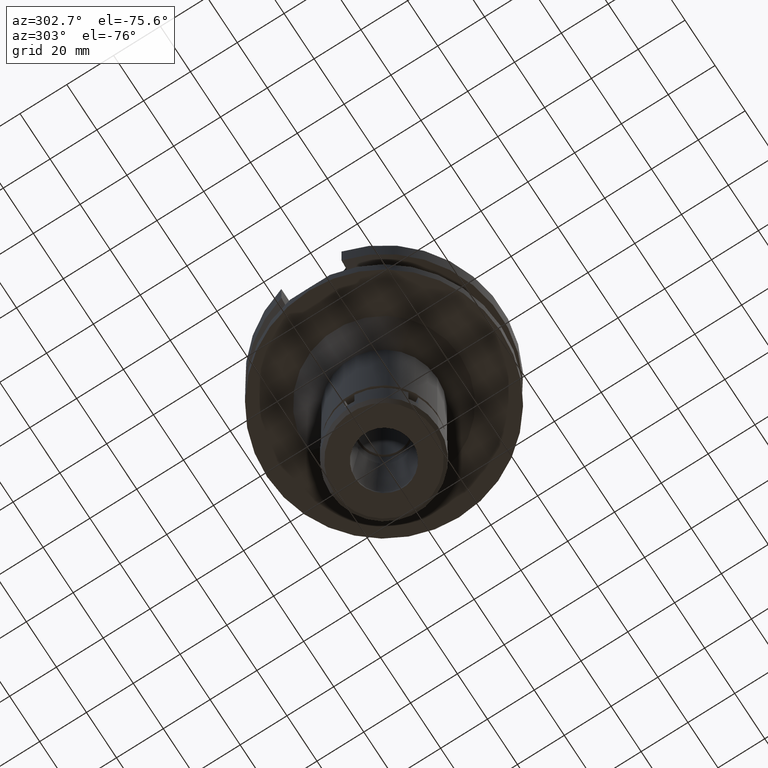
[diagram: clean part render]
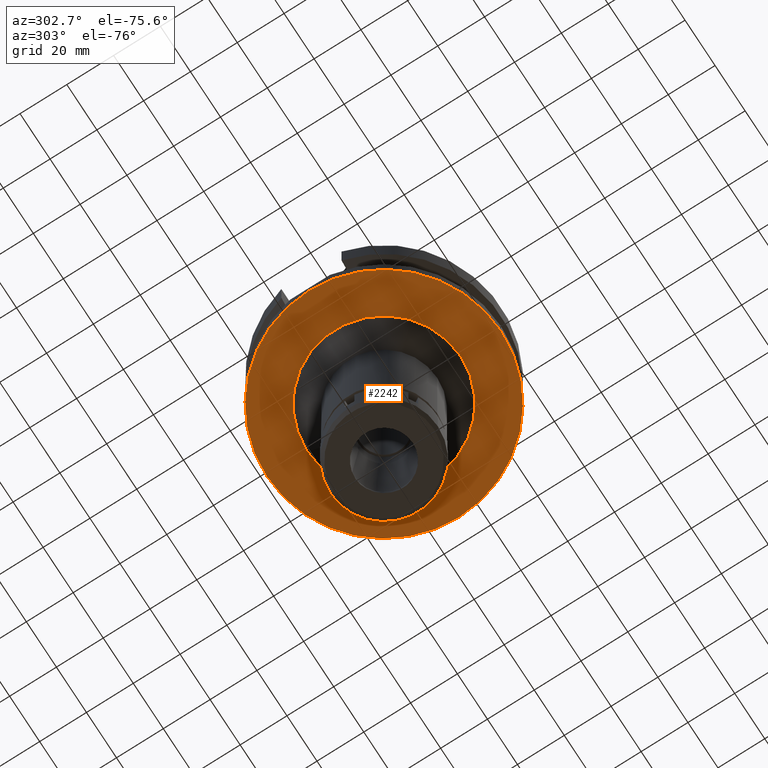
[diagram: same view with one face highlighted and labeled with its STEP entity id]
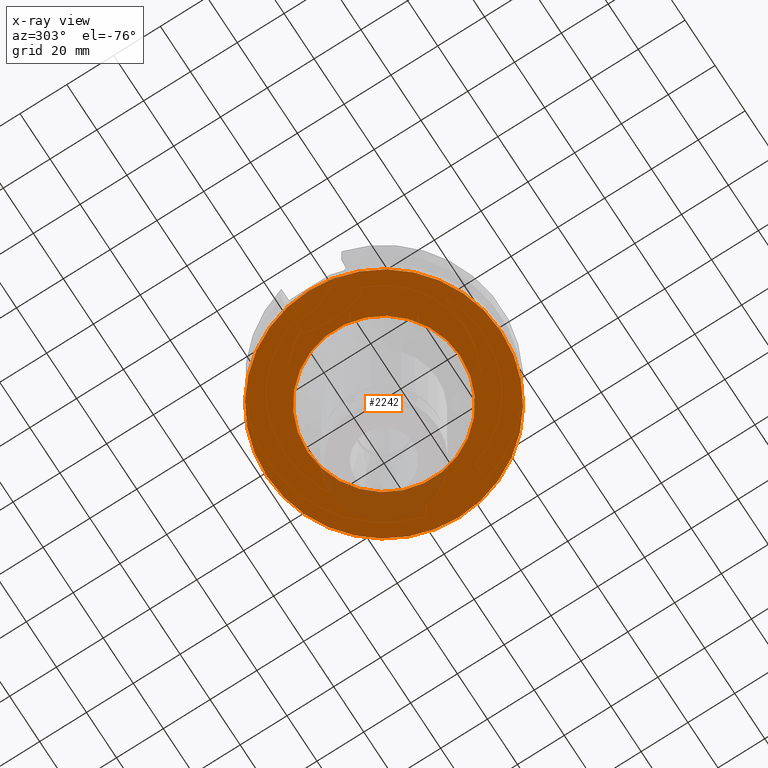
[diagram: x-ray of the same camera — body ghosted, the highlighted face saturated]
A machine part, auxiliary view. The second image highlights one B-rep face of the part: STEP entity #2242.
The next image is the same camera in x-ray: the body ghosted, the highlighted face saturated — about 9% of this face is hidden behind the body in this view.
In plain terms, the highlighted planar face has unit normal (0, 0, -1).
Its self-contained STEP definition (entity closure, byte-faithful):
#61 = FACE_BOUND ( 'NONE', #446, .T. ) ;
#253 = DIRECTION ( 'NONE',  ( 0.0000000000000000000, -1.000000000000000000, 0.0000000000000000000 ) ) ;
#330 = CARTESIAN_POINT ( 'NONE',  ( 0.0000000000000000000, -50.00000000000000000, -38.00000000000000000 ) ) ;
#446 = EDGE_LOOP ( 'NONE', ( #1482, #3627 ) ) ;
#497 = DIRECTION ( 'NONE',  ( 0.0000000000000000000, 0.0000000000000000000, -1.000000000000000000 ) ) ;
#500 = AXIS2_PLACEMENT_3D ( 'NONE', #3057, #497, #253 ) ;
#611 = DIRECTION ( 'NONE',  ( 0.0000000000000000000, -1.000000000000000000, 0.0000000000000000000 ) ) ;
#716 = DIRECTION ( 'NONE',  ( 0.0000000000000000000, -1.000000000000000000, 0.0000000000000000000 ) ) ;
#755 = CARTESIAN_POINT ( 'NONE',  ( 0.0000000000000000000, -32.75000000000000000, -38.00000000000000000 ) ) ;
#767 = DIRECTION ( 'NONE',  ( 0.0000000000000000000, 0.0000000000000000000, 1.000000000000000000 ) ) ;
#859 = CIRCLE ( 'NONE', #500, 32.75000000000000000 ) ;
#894 = PLANE ( 'NONE',  #2033 ) ;
#982 = EDGE_LOOP ( 'NONE', ( #1084, #1428 ) ) ;
#988 = DIRECTION ( 'NONE',  ( 0.0000000000000000000, 1.000000000000000000, 0.0000000000000000000 ) ) ;
#1004 = CARTESIAN_POINT ( 'NONE',  ( 0.0000000000000000000, 32.75000000000000000, -38.00000000000000000 ) ) ;
#1012 = CARTESIAN_POINT ( 'NONE',  ( 0.0000000000000000000, 2.602251983507999750E-14, -38.00000000000000000 ) ) ;
#1084 = ORIENTED_EDGE ( 'NONE', *, *, #1488, .F. ) ;
#1271 = CARTESIAN_POINT ( 'NONE',  ( 0.0000000000000000000, 50.00000000000000000, -38.00000000000000000 ) ) ;
#1287 = AXIS2_PLACEMENT_3D ( 'NONE', #3047, #767, #1938 ) ;
#1312 = DIRECTION ( 'NONE',  ( 0.0000000000000000000, 0.0000000000000000000, 1.000000000000000000 ) ) ;
#1428 = ORIENTED_EDGE ( 'NONE', *, *, #2931, .F. ) ;
#1482 = ORIENTED_EDGE ( 'NONE', *, *, #3210, .F. ) ;
#1488 = EDGE_CURVE ( 'NONE', #2096, #2734, #2902, .T. ) ;
#1504 = AXIS2_PLACEMENT_3D ( 'NONE', #1012, #1312, #716 ) ;
#1938 = DIRECTION ( 'NONE',  ( 0.0000000000000000000, 1.000000000000000000, 0.0000000000000000000 ) ) ;
#2031 = CARTESIAN_POINT ( 'NONE',  ( 0.0000000000000000000, 0.0000000000000000000, -38.00000000000000000 ) ) ;
#2033 = AXIS2_PLACEMENT_3D ( 'NONE', #2031, #3177, #611 ) ;
#2096 = VERTEX_POINT ( 'NONE', #1271 ) ;
#2242 = ADVANCED_FACE ( 'NONE', ( #3452, #61 ), #894, .T. ) ;
#2353 = CARTESIAN_POINT ( 'NONE',  ( 0.0000000000000000000, 0.0000000000000000000, -38.00000000000000000 ) ) ;
#2411 = CIRCLE ( 'NONE', #1504, 50.00000000000000000 ) ;
#2670 = EDGE_CURVE ( 'NONE', #2856, #3309, #859, .T. ) ;
#2734 = VERTEX_POINT ( 'NONE', #330 ) ;
#2837 = AXIS2_PLACEMENT_3D ( 'NONE', #2353, #3509, #988 ) ;
#2856 = VERTEX_POINT ( 'NONE', #755 ) ;
#2902 = CIRCLE ( 'NONE', #1287, 50.00000000000000000 ) ;
#2931 = EDGE_CURVE ( 'NONE', #2734, #2096, #2411, .T. ) ;
#3047 = CARTESIAN_POINT ( 'NONE',  ( 0.0000000000000000000, 2.602251983507999750E-14, -38.00000000000000000 ) ) ;
#3057 = CARTESIAN_POINT ( 'NONE',  ( 0.0000000000000000000, 0.0000000000000000000, -38.00000000000000000 ) ) ;
#3177 = DIRECTION ( 'NONE',  ( 0.0000000000000000000, 0.0000000000000000000, -1.000000000000000000 ) ) ;
#3210 = EDGE_CURVE ( 'NONE', #3309, #2856, #3481, .T. ) ;
#3309 = VERTEX_POINT ( 'NONE', #1004 ) ;
#3452 = FACE_OUTER_BOUND ( 'NONE', #982, .T. ) ;
#3481 = CIRCLE ( 'NONE', #2837, 32.75000000000000000 ) ;
#3509 = DIRECTION ( 'NONE',  ( 0.0000000000000000000, 0.0000000000000000000, -1.000000000000000000 ) ) ;
#3627 = ORIENTED_EDGE ( 'NONE', *, *, #2670, .F. ) ;